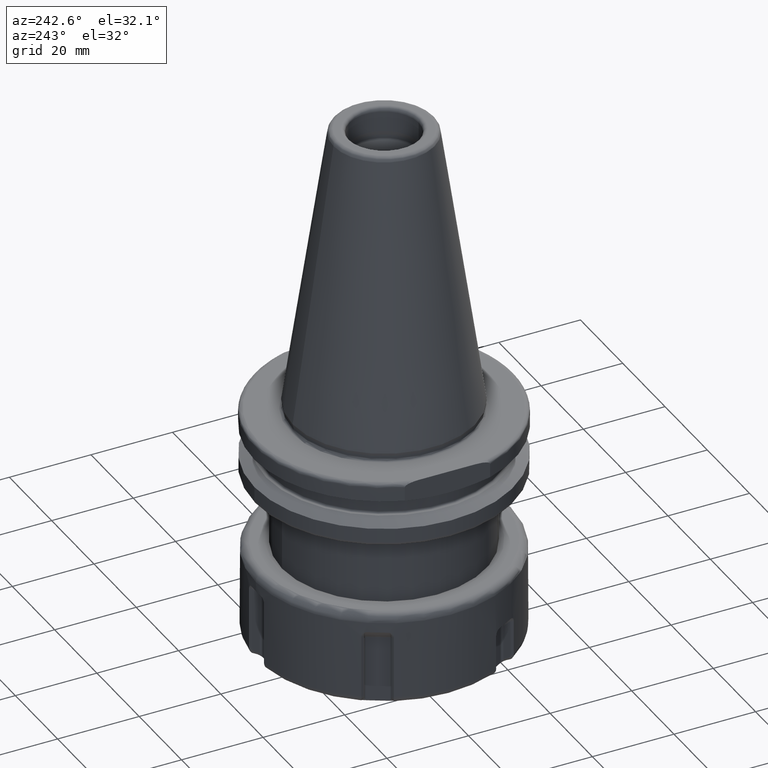
[diagram: clean part render]
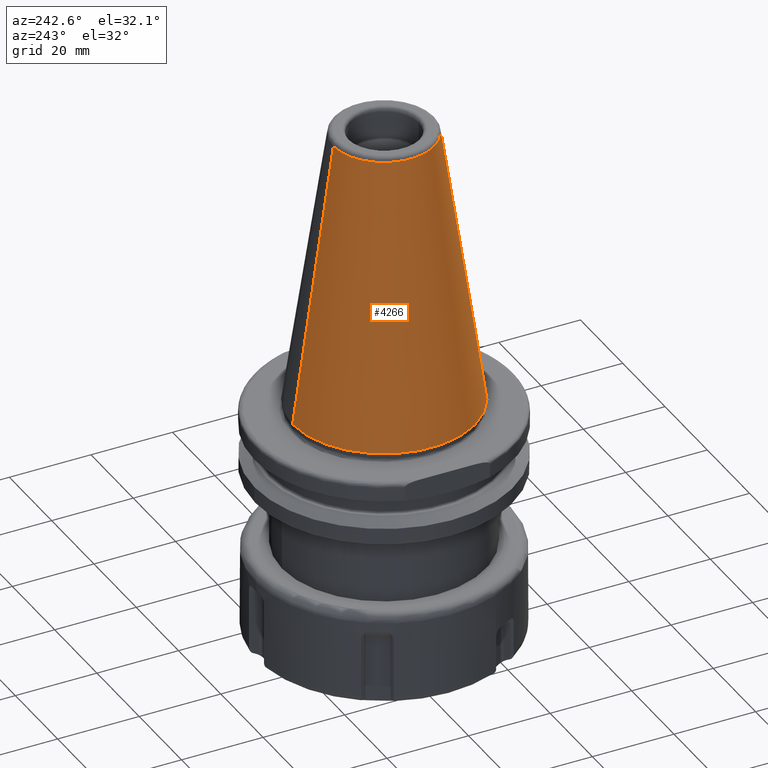
[diagram: same view with one face highlighted and labeled with its STEP entity id]
A machine part, auxiliary view. The second image highlights one B-rep face of the part: STEP entity #4266.
In plain terms, the highlighted conical surface has half-angle 8.297 deg.
Its self-contained STEP definition (entity closure, byte-faithful):
#363=CARTESIAN_POINT('',(0,0,86.47316733970));
#364=DIRECTION('',(0,0,1));
#365=DIRECTION('',(0,1,0));
#366=AXIS2_PLACEMENT_3D('',#363,#364,#365);
#368=DIRECTION('',(-0.0000000000001331678798212,0.1443061164152,0.9895330943254));
#369=VECTOR('',#368,69.29850828936);
#370=CARTESIAN_POINT('',(0,-22.39999903812,17.9));
#371=LINE('',#370,#369);
#372=CARTESIAN_POINT('',(0,0,17.9));
#373=DIRECTION('',(0,0,1));
#374=DIRECTION('',(0,1,0));
#375=AXIS2_PLACEMENT_3D('',#372,#373,#374);
#377=DIRECTION('',(0.0000000000001331686096641,-0.1443061164152,0.9895330943254));
#378=VECTOR('',#377,69.29850828936);
#379=CARTESIAN_POINT('',(0,22.39999903812,17.9));
#380=LINE('',#379,#378);
#3342=CARTESIAN_POINT('',(0,22.39999903812,17.9));
#3343=VERTEX_POINT('',#3342);
#3372=CARTESIAN_POINT('',(0,-22.39999903812,17.9));
#3373=VERTEX_POINT('',#3372);
#3406=CARTESIAN_POINT('',(0,12.39980043352,86.47316733970));
#3407=CARTESIAN_POINT('',(0,-12.39980043352,86.47316733970));
#3408=VERTEX_POINT('',#3406);
#3409=VERTEX_POINT('',#3407);
#4252=CARTESIAN_POINT('',(0,0,52.18658366985));
#4253=DIRECTION('',(0,0,-1));
#4254=DIRECTION('',(0,-1,0));
#4255=AXIS2_PLACEMENT_3D('',#4252,#4253,#4254);
#4256=CONICAL_SURFACE('',#4255,17.39989973582,8.2971);
#4258=ORIENTED_EDGE('',*,*,#4257,.T.);
#4260=ORIENTED_EDGE('',*,*,#4259,.F.);
#4261=ORIENTED_EDGE('',*,*,#4245,.F.);
#4263=ORIENTED_EDGE('',*,*,#4262,.T.);
#4264=EDGE_LOOP('',(#4258,#4260,#4261,#4263));
#4265=FACE_OUTER_BOUND('',#4264,.F.);
#4266=ADVANCED_FACE('',(#4265),#4256,.T.);
#367=CIRCLE('',#366,12.39980043352);
#376=CIRCLE('',#375,22.39999903812);
#4245=EDGE_CURVE('',#3343,#3373,#376,.T.);
#4257=EDGE_CURVE('',#3408,#3409,#367,.T.);
#4259=EDGE_CURVE('',#3373,#3409,#371,.T.);
#4262=EDGE_CURVE('',#3343,#3408,#380,.T.);